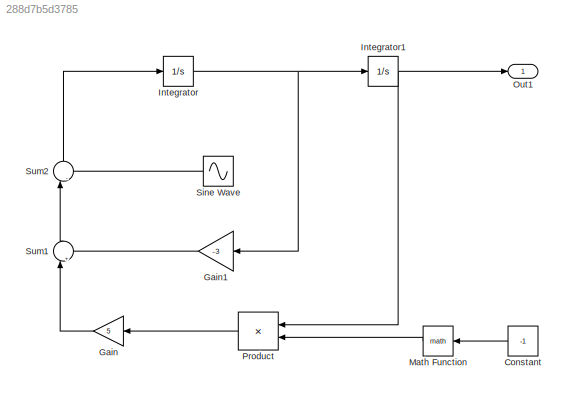
MODEL slx_288d7b5d3785
KIND model
CONFIG AbsTol = auto
CONFIG EnableMultiTasking = off
CONFIG FixedStep = auto
CONFIG MaxStep = auto
CONFIG MinStep = auto
CONFIG RelTol = 1e-3
CONFIG SampleTimeConstraint = Unconstrained
CONFIG SolverName = VariableStepAuto
CONFIG StartTime = 0.0
CONFIG StopTime = 10.0
BLOCK [Constant] Constant
  Value = -1
BLOCK [Gain] Gain
  Gain = 5
BLOCK [Gain] Gain1
  Gain = -3
BLOCK [Integrator] Integrator
  InitialCondition = x0
  Ports = [1, 1]
BLOCK [Integrator] Integrator1
  InitialCondition = x0
  Ports = [1, 1]
BLOCK [Math] Math Function
  Ports = [1, 1]
BLOCK [Outport] Out1
BLOCK [Product] Product
  Ports = [2, 1]
BLOCK [Sin] Sine Wave
  Amplitude = 8
  Frequency = 5
  Ports = [0, 1]
  SampleTime = 0
BLOCK [Sum] Sum1
  Inputs = |++
  NameLocation = right
  Ports = [2, 1]
BLOCK [Sum] Sum2
  Inputs = |-+
  NameLocation = right
  Ports = [2, 1]
LINE Constant:1 -> Math Function:1
LINE Gain1:1 -> Sum1:2
LINE Gain:1 -> Sum1:1
NET Integrator1:1 -> Out1:1, Product:1
NET Integrator:1 -> Gain1:1, Integrator1:1
LINE Math Function:1 -> Product:2
LINE Product:1 -> Gain:1
LINE Sine Wave:1 -> Sum2:2
LINE Sum1:1 -> Sum2:1
LINE Sum2:1 -> Integrator:1
note: NET lines group one-source signal fan-out (src -> all destinations, sorted); 1:1 wires keep LINE
